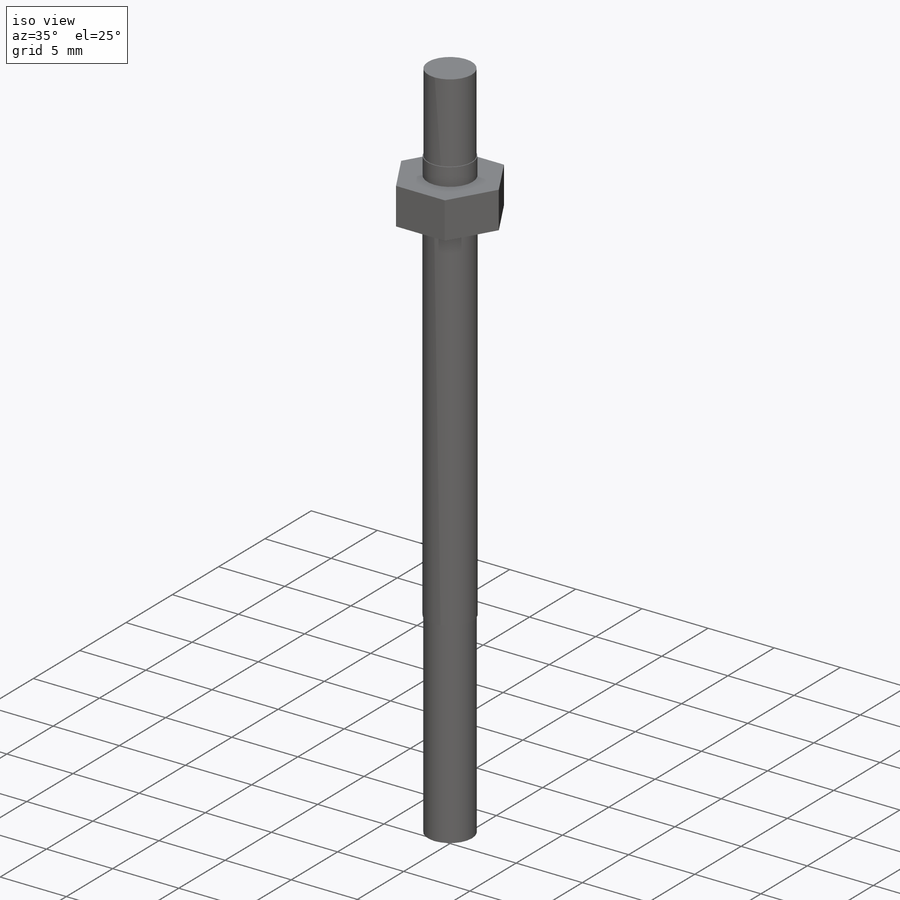
[diagram: iso view]
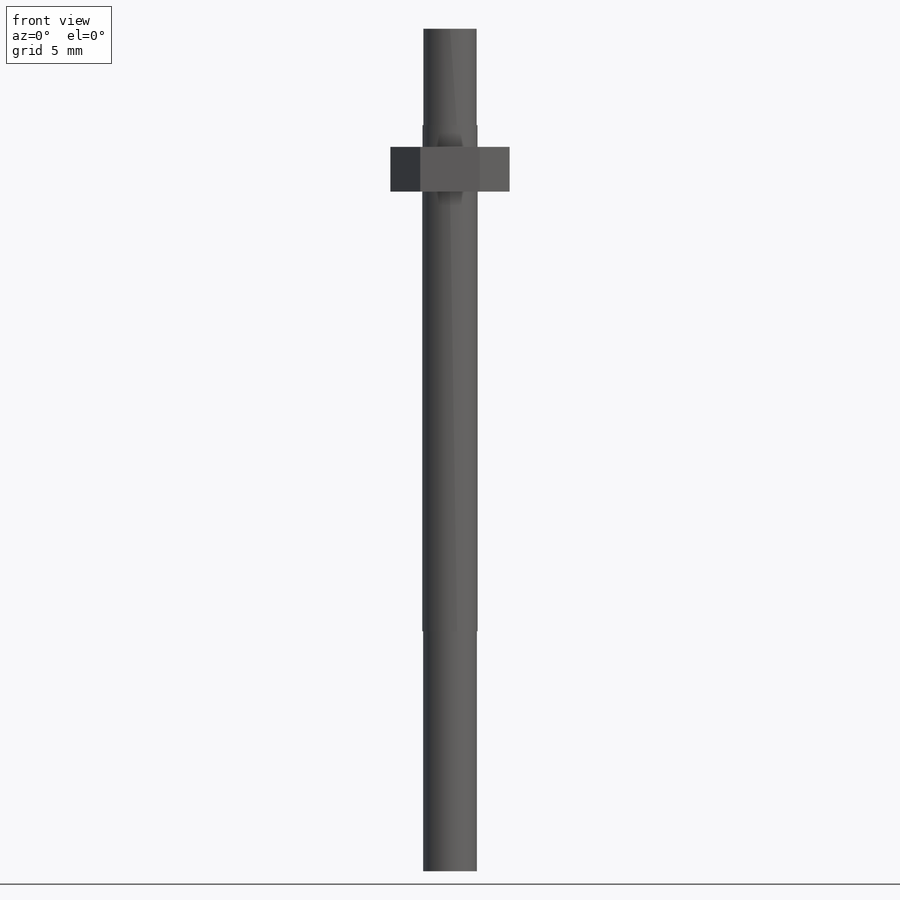
[diagram: front view]
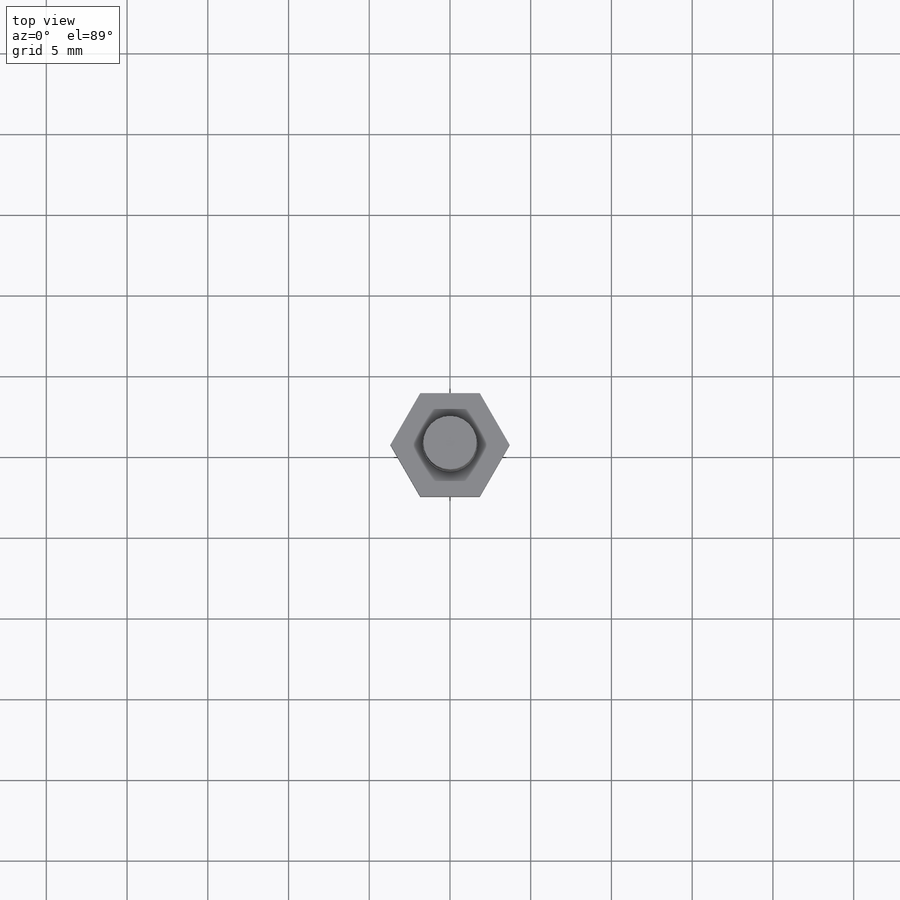
[diagram: top view]
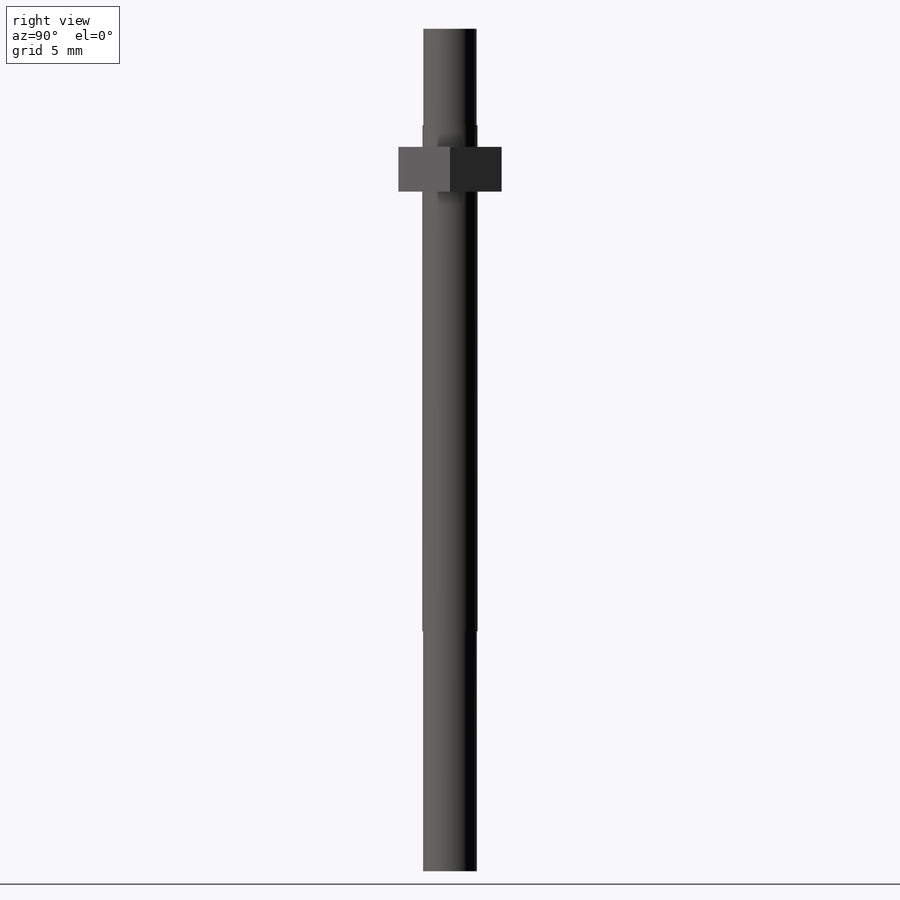
[diagram: right view]
SOLIDWORKS PART (.sldprt)
format: sldprt  version: not decoded by parser v0  size: 146,432 bytes
history: native  units: mm
features: sketch x5, extrude x3, cut_extrude x2, material x1 (+12 scaffold rows collapsed)
feature tree (23):
  scaffold x12  (default folders/planes/origin — collapsed)
  material  "Material <not specified>"
  sketch  "Sketch1"  dims[D1=3.429mm]
  extrude  "Boss-Extrude1"  Depth=42.0878mm
  sketch  "Sketch2"
  extrude  "Boss-Extrude2"  Depth=2.7686mm
  sketch  "Sketch3"  dims[D1=3.4036mm]
  extrude  "Boss-Extrude3"  Depth=7.3152mm
  sketch  "Sketch4"  dims[D1=0.0508mm]
  cut_extrude  "Cut-Extrude1"  Depth=5.969mm
  sketch  "Sketch5"  dims[D1=0.0mm D2=0.0508mm]
  cut_extrude  "Cut-Extrude2"  Depth=14.859mm
decode coverage: 9 of 10 modeling features carry decoded parameters
note: suppression state not decoded; provenance and decode notes live in map.json
